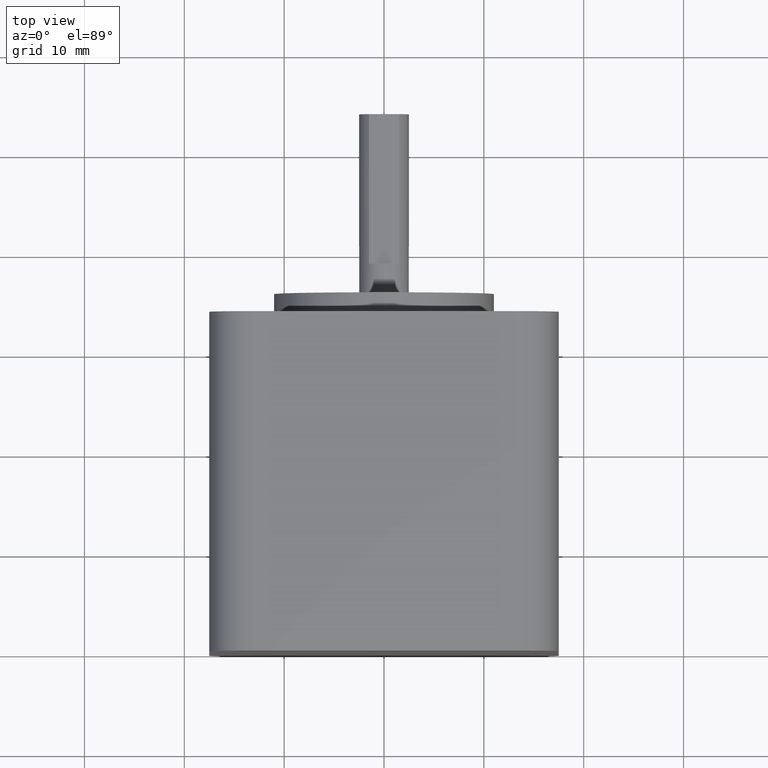
[diagram: clean part render]
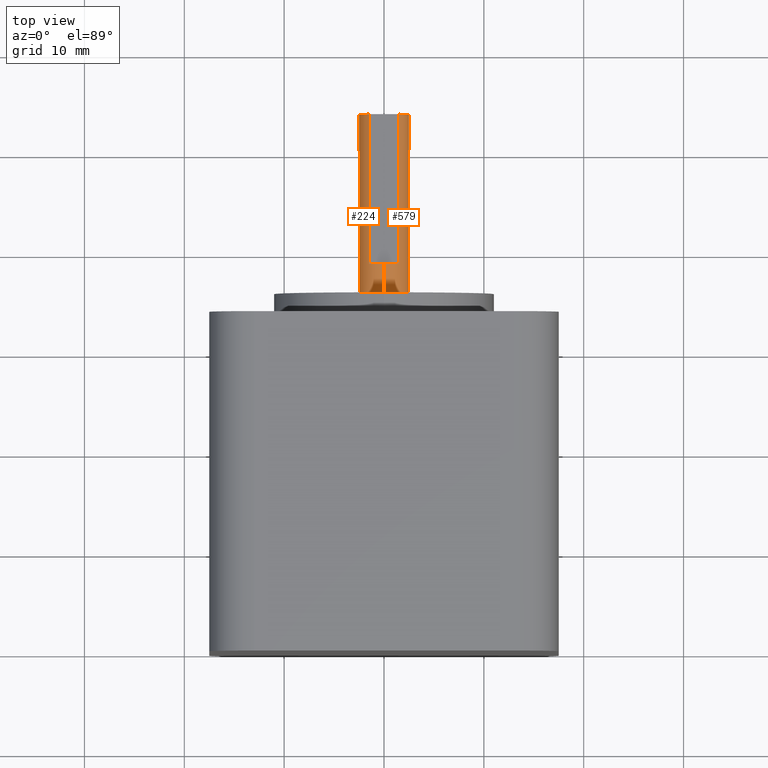
[diagram: same view with one multi-face feature highlighted, each face labeled with its STEP entity id]
A machine part, top view. The highlighted faces form ONE feature: a constant-radius fillet chain: 2 tangent blend faces with common blend radius 2.5 mm. The faces share edges in the B-rep.
Their STEP definitions:
[1] entity #579 (Cylinder):
#51 = VECTOR ( 'NONE', #680, 1000.000000000000000 ) ;
#58 = EDGE_LOOP ( 'NONE', ( #720, #183, #372, #252, #137, #295 ) ) ;
#70 = DIRECTION ( 'NONE',  ( 0.0000000000000000000, 1.000000000000000000, 0.0000000000000000000 ) ) ;
#82 = VERTEX_POINT ( 'NONE', #200 ) ;
#92 = LINE ( 'NONE', #545, #51 ) ;
#116 = LINE ( 'NONE', #489, #182 ) ;
#125 = DIRECTION ( 'NONE',  ( -0.0000000000000000000, -1.000000000000000000, -0.0000000000000000000 ) ) ;
#126 = VERTEX_POINT ( 'NONE', #888 ) ;
#130 = CARTESIAN_POINT ( 'NONE',  ( 0.0000000000000000000, 36.00000000000000700, -2.500000000000000000 ) ) ;
#131 = DIRECTION ( 'NONE',  ( 0.0000000000000000000, 0.0000000000000000000, 1.000000000000000000 ) ) ;
#136 = DIRECTION ( 'NONE',  ( -0.0000000000000000000, -1.000000000000000000, -0.0000000000000000000 ) ) ;
#137 = ORIENTED_EDGE ( 'NONE', *, *, #321, .F. ) ;
#142 = AXIS2_PLACEMENT_3D ( 'NONE', #342, #136, #752 ) ;
#144 = EDGE_CURVE ( 'NONE', #126, #544, #353, .T. ) ;
#155 = AXIS2_PLACEMENT_3D ( 'NONE', #670, #125, #131 ) ;
#156 = VERTEX_POINT ( 'NONE', #777 ) ;
#182 = VECTOR ( 'NONE', #616, 1000.000000000000000 ) ;
#183 = ORIENTED_EDGE ( 'NONE', *, *, #186, .T. ) ;
#186 = EDGE_CURVE ( 'NONE', #126, #82, #429, .T. ) ;
#200 = CARTESIAN_POINT ( 'NONE',  ( 3.061616997868383100E-016, 36.00000000000000700, 2.500000000000000000 ) ) ;
#201 = AXIS2_PLACEMENT_3D ( 'NONE', #209, #70, #751 ) ;
#209 = CARTESIAN_POINT ( 'NONE',  ( 0.0000000000000000000, 39.00000000000000700, 0.0000000000000000000 ) ) ;
#213 = CARTESIAN_POINT ( 'NONE',  ( 0.0000000000000000000, 54.00000000000000700, -2.500000000000000000 ) ) ;
#222 = FACE_OUTER_BOUND ( 'NONE', #58, .T. ) ;
#235 = CARTESIAN_POINT ( 'NONE',  ( 0.0000000000000000000, 54.00000000000000700, 0.0000000000000000000 ) ) ;
#252 = ORIENTED_EDGE ( 'NONE', *, *, #610, .F. ) ;
#295 = ORIENTED_EDGE ( 'NONE', *, *, #678, .F. ) ;
#300 = DIRECTION ( 'NONE',  ( 0.0000000000000000000, 0.0000000000000000000, 1.000000000000000000 ) ) ;
#321 = EDGE_CURVE ( 'NONE', #156, #766, #360, .T. ) ;
#342 = CARTESIAN_POINT ( 'NONE',  ( 0.0000000000000000000, 54.00000000000000700, 0.0000000000000000000 ) ) ;
#353 = CIRCLE ( 'NONE', #201, 2.500000000000000000 ) ;
#360 = CIRCLE ( 'NONE', #566, 2.500000000000000000 ) ;
#372 = ORIENTED_EDGE ( 'NONE', *, *, #518, .F. ) ;
#401 = CYLINDRICAL_SURFACE ( 'NONE', #142, 2.500000000000000000 ) ;
#429 = LINE ( 'NONE', #837, #767 ) ;
#448 = DIRECTION ( 'NONE',  ( 0.0000000000000000000, 1.000000000000000000, 0.0000000000000000000 ) ) ;
#465 = VERTEX_POINT ( 'NONE', #130 ) ;
#489 = CARTESIAN_POINT ( 'NONE',  ( 1.500000000000001300, 39.00000000000000700, 1.999999999999999100 ) ) ;
#518 = EDGE_CURVE ( 'NONE', #465, #82, #733, .T. ) ;
#534 = CARTESIAN_POINT ( 'NONE',  ( 1.500000000000001300, 39.00000000000000700, 1.999999999999999100 ) ) ;
#544 = VERTEX_POINT ( 'NONE', #534 ) ;
#545 = CARTESIAN_POINT ( 'NONE',  ( 0.0000000000000000000, 54.00000000000000700, -2.500000000000000000 ) ) ;
#566 = AXIS2_PLACEMENT_3D ( 'NONE', #235, #448, #300 ) ;
#579 = ADVANCED_FACE ( 'NONE', ( #222 ), #401, .T. ) ;
#610 = EDGE_CURVE ( 'NONE', #766, #465, #92, .T. ) ;
#616 = DIRECTION ( 'NONE',  ( -0.0000000000000000000, 1.000000000000000000, -0.0000000000000000000 ) ) ;
#670 = CARTESIAN_POINT ( 'NONE',  ( 0.0000000000000000000, 36.00000000000000700, 0.0000000000000000000 ) ) ;
#678 = EDGE_CURVE ( 'NONE', #544, #156, #116, .T. ) ;
#680 = DIRECTION ( 'NONE',  ( -0.0000000000000000000, -1.000000000000000000, -0.0000000000000000000 ) ) ;
#720 = ORIENTED_EDGE ( 'NONE', *, *, #144, .F. ) ;
#733 = CIRCLE ( 'NONE', #155, 2.500000000000000000 ) ;
#751 = DIRECTION ( 'NONE',  ( 0.0000000000000000000, 0.0000000000000000000, 1.000000000000000000 ) ) ;
#752 = DIRECTION ( 'NONE',  ( 0.0000000000000000000, 0.0000000000000000000, -1.000000000000000000 ) ) ;
#766 = VERTEX_POINT ( 'NONE', #213 ) ;
#767 = VECTOR ( 'NONE', #846, 1000.000000000000000 ) ;
#777 = CARTESIAN_POINT ( 'NONE',  ( 1.500000000000001300, 54.00000000000000700, 1.999999999999999100 ) ) ;
#837 = CARTESIAN_POINT ( 'NONE',  ( 3.061616997868383100E-016, 54.00000000000000700, 2.500000000000000000 ) ) ;
#846 = DIRECTION ( 'NONE',  ( -0.0000000000000000000, -1.000000000000000000, -0.0000000000000000000 ) ) ;
#888 = CARTESIAN_POINT ( 'NONE',  ( 3.061616997868383100E-016, 39.00000000000000700, 2.500000000000000000 ) ) ;
[2] entity #224 (Cylinder):
#17 = CARTESIAN_POINT ( 'NONE',  ( -1.500000000000000200, 39.00000000000000700, 2.000000000000000000 ) ) ;
#19 = CARTESIAN_POINT ( 'NONE',  ( 0.0000000000000000000, 54.00000000000000700, 0.0000000000000000000 ) ) ;
#51 = VECTOR ( 'NONE', #680, 1000.000000000000000 ) ;
#82 = VERTEX_POINT ( 'NONE', #200 ) ;
#92 = LINE ( 'NONE', #545, #51 ) ;
#110 = DIRECTION ( 'NONE',  ( -0.0000000000000000000, -1.000000000000000000, -0.0000000000000000000 ) ) ;
#111 = EDGE_CURVE ( 'NONE', #766, #718, #550, .T. ) ;
#126 = VERTEX_POINT ( 'NONE', #888 ) ;
#130 = CARTESIAN_POINT ( 'NONE',  ( 0.0000000000000000000, 36.00000000000000700, -2.500000000000000000 ) ) ;
#158 = LINE ( 'NONE', #815, #219 ) ;
#173 = CARTESIAN_POINT ( 'NONE',  ( 0.0000000000000000000, 36.00000000000000700, 0.0000000000000000000 ) ) ;
#186 = EDGE_CURVE ( 'NONE', #126, #82, #429, .T. ) ;
#200 = CARTESIAN_POINT ( 'NONE',  ( 3.061616997868383100E-016, 36.00000000000000700, 2.500000000000000000 ) ) ;
#213 = CARTESIAN_POINT ( 'NONE',  ( 0.0000000000000000000, 54.00000000000000700, -2.500000000000000000 ) ) ;
#219 = VECTOR ( 'NONE', #480, 1000.000000000000000 ) ;
#224 = ADVANCED_FACE ( 'NONE', ( #381 ), #466, .T. ) ;
#225 = DIRECTION ( 'NONE',  ( -0.0000000000000000000, -1.000000000000000000, -0.0000000000000000000 ) ) ;
#272 = ORIENTED_EDGE ( 'NONE', *, *, #610, .T. ) ;
#285 = ORIENTED_EDGE ( 'NONE', *, *, #186, .F. ) ;
#335 = EDGE_CURVE ( 'NONE', #82, #465, #744, .T. ) ;
#352 = EDGE_LOOP ( 'NONE', ( #285, #710, #522, #391, #272, #584 ) ) ;
#381 = FACE_OUTER_BOUND ( 'NONE', #352, .T. ) ;
#391 = ORIENTED_EDGE ( 'NONE', *, *, #111, .F. ) ;
#400 = CARTESIAN_POINT ( 'NONE',  ( 0.0000000000000000000, 54.00000000000000700, 0.0000000000000000000 ) ) ;
#410 = DIRECTION ( 'NONE',  ( 0.0000000000000000000, 0.0000000000000000000, 1.000000000000000000 ) ) ;
#429 = LINE ( 'NONE', #837, #767 ) ;
#442 = AXIS2_PLACEMENT_3D ( 'NONE', #19, #225, #641 ) ;
#454 = DIRECTION ( 'NONE',  ( 0.0000000000000000000, 0.0000000000000000000, 1.000000000000000000 ) ) ;
#465 = VERTEX_POINT ( 'NONE', #130 ) ;
#466 = CYLINDRICAL_SURFACE ( 'NONE', #442, 2.500000000000000000 ) ;
#471 = EDGE_CURVE ( 'NONE', #693, #126, #685, .T. ) ;
#480 = DIRECTION ( 'NONE',  ( -0.0000000000000000000, 1.000000000000000000, -0.0000000000000000000 ) ) ;
#482 = AXIS2_PLACEMENT_3D ( 'NONE', #173, #110, #454 ) ;
#522 = ORIENTED_EDGE ( 'NONE', *, *, #621, .T. ) ;
#545 = CARTESIAN_POINT ( 'NONE',  ( 0.0000000000000000000, 54.00000000000000700, -2.500000000000000000 ) ) ;
#550 = CIRCLE ( 'NONE', #643, 2.500000000000000000 ) ;
#584 = ORIENTED_EDGE ( 'NONE', *, *, #335, .F. ) ;
#587 = AXIS2_PLACEMENT_3D ( 'NONE', #805, #730, #873 ) ;
#610 = EDGE_CURVE ( 'NONE', #766, #465, #92, .T. ) ;
#621 = EDGE_CURVE ( 'NONE', #693, #718, #158, .T. ) ;
#641 = DIRECTION ( 'NONE',  ( 0.0000000000000000000, 0.0000000000000000000, -1.000000000000000000 ) ) ;
#643 = AXIS2_PLACEMENT_3D ( 'NONE', #400, #806, #410 ) ;
#680 = DIRECTION ( 'NONE',  ( -0.0000000000000000000, -1.000000000000000000, -0.0000000000000000000 ) ) ;
#685 = CIRCLE ( 'NONE', #587, 2.500000000000000000 ) ;
#691 = CARTESIAN_POINT ( 'NONE',  ( -1.500000000000000200, 54.00000000000000700, 2.000000000000000000 ) ) ;
#693 = VERTEX_POINT ( 'NONE', #17 ) ;
#710 = ORIENTED_EDGE ( 'NONE', *, *, #471, .F. ) ;
#718 = VERTEX_POINT ( 'NONE', #691 ) ;
#730 = DIRECTION ( 'NONE',  ( 0.0000000000000000000, 1.000000000000000000, 0.0000000000000000000 ) ) ;
#744 = CIRCLE ( 'NONE', #482, 2.500000000000000000 ) ;
#766 = VERTEX_POINT ( 'NONE', #213 ) ;
#767 = VECTOR ( 'NONE', #846, 1000.000000000000000 ) ;
#805 = CARTESIAN_POINT ( 'NONE',  ( 0.0000000000000000000, 39.00000000000000700, 0.0000000000000000000 ) ) ;
#806 = DIRECTION ( 'NONE',  ( 0.0000000000000000000, 1.000000000000000000, 0.0000000000000000000 ) ) ;
#815 = CARTESIAN_POINT ( 'NONE',  ( -1.500000000000000200, 39.00000000000000700, 2.000000000000000000 ) ) ;
#837 = CARTESIAN_POINT ( 'NONE',  ( 3.061616997868383100E-016, 54.00000000000000700, 2.500000000000000000 ) ) ;
#846 = DIRECTION ( 'NONE',  ( -0.0000000000000000000, -1.000000000000000000, -0.0000000000000000000 ) ) ;
#873 = DIRECTION ( 'NONE',  ( 0.0000000000000000000, 0.0000000000000000000, 1.000000000000000000 ) ) ;
#888 = CARTESIAN_POINT ( 'NONE',  ( 3.061616997868383100E-016, 39.00000000000000700, 2.500000000000000000 ) ) ;